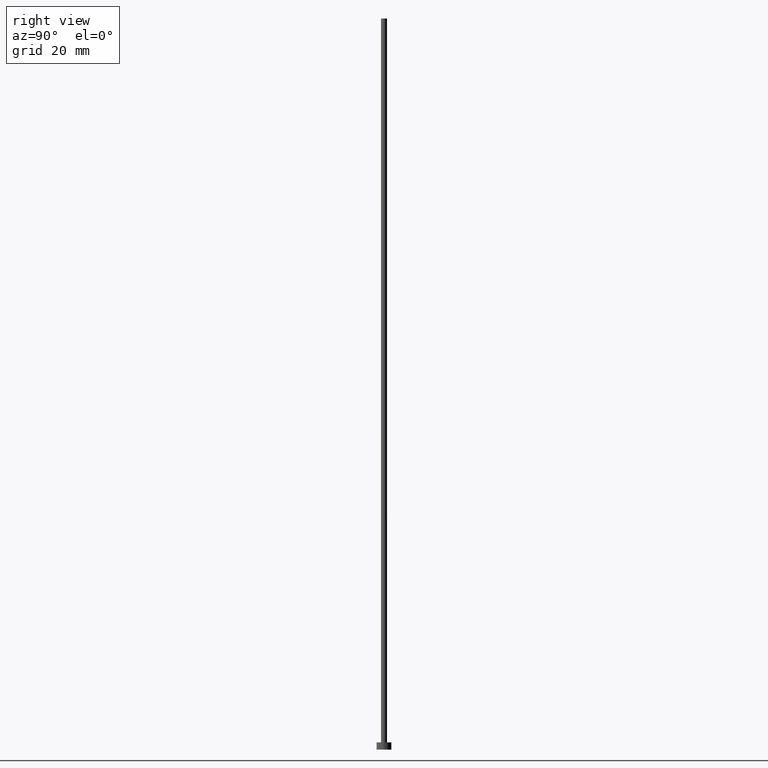
[diagram: clean part render]
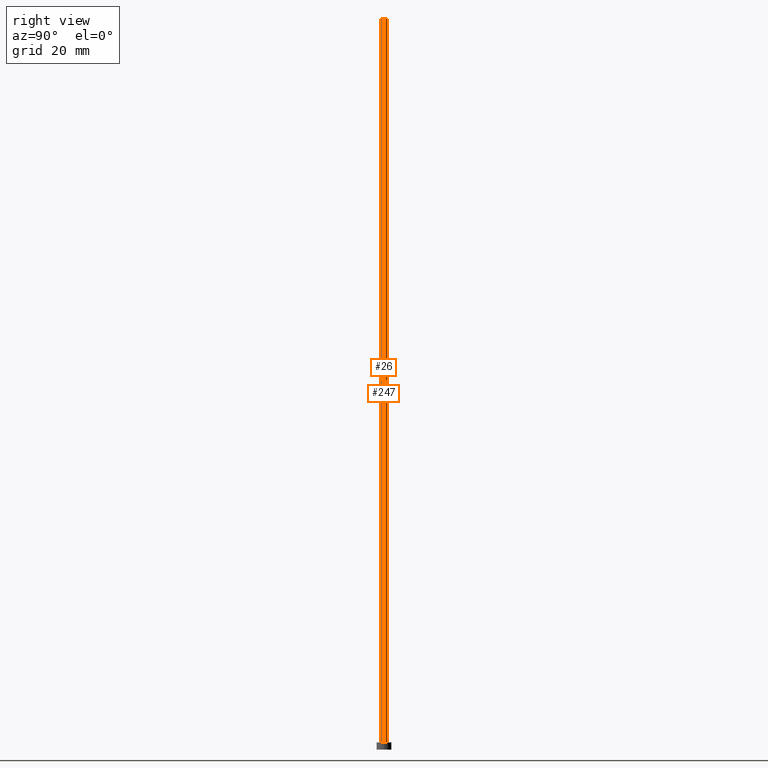
[diagram: same view with one multi-face feature highlighted, each face labeled with its STEP entity id]
A machine part, right view. The highlighted faces form ONE feature: a constant-radius fillet chain: 2 tangent blend faces with common blend radius 0.5 mm. The faces share edges in the B-rep.
Their STEP definitions:
[1] entity #247 (Cylinder):
#1 = ORIENTED_EDGE ( 'NONE', *, *, #76, .F. ) ;
#3 = ORIENTED_EDGE ( 'NONE', *, *, #92, .F. ) ;
#5 = VERTEX_POINT ( 'NONE', #19 ) ;
#19 = CARTESIAN_POINT ( 'NONE',  ( -0.5000000000000000000, 0.000000000000000000, 122.0000000000000000 ) ) ;
#30 = LINE ( 'NONE', #185, #216 ) ;
#31 = DIRECTION ( 'NONE',  ( -0.000000000000000000, -0.000000000000000000, -1.000000000000000000 ) ) ;
#44 = AXIS2_PLACEMENT_3D ( 'NONE', #90, #203, #54 ) ;
#52 = EDGE_CURVE ( 'NONE', #254, #79, #126, .T. ) ;
#54 = DIRECTION ( 'NONE',  ( -1.000000000000000000, 0.000000000000000000, 0.000000000000000000 ) ) ;
#61 = EDGE_CURVE ( 'NONE', #157, #254, #30, .T. ) ;
#68 = CIRCLE ( 'NONE', #176, 0.5000000000000000000 ) ;
#75 = CYLINDRICAL_SURFACE ( 'NONE', #44, 0.5000000000000000000 ) ;
#76 = EDGE_CURVE ( 'NONE', #157, #5, #68, .T. ) ;
#79 = VERTEX_POINT ( 'NONE', #143 ) ;
#83 = DIRECTION ( 'NONE',  ( 0.000000000000000000, 0.000000000000000000, 1.000000000000000000 ) ) ;
#90 = CARTESIAN_POINT ( 'NONE',  ( 0.000000000000000000, 0.000000000000000000, 122.0000000000000000 ) ) ;
#92 = EDGE_CURVE ( 'NONE', #5, #79, #225, .T. ) ;
#112 = CARTESIAN_POINT ( 'NONE',  ( 0.5000000000000000000, 6.123233995736766036E-17, 1.199999999999999956 ) ) ;
#119 = EDGE_LOOP ( 'NONE', ( #1, #158, #120, #3 ) ) ;
#120 = ORIENTED_EDGE ( 'NONE', *, *, #52, .T. ) ;
#123 = CARTESIAN_POINT ( 'NONE',  ( 0.5000000000000000000, 6.123233995736766036E-17, 122.0000000000000000 ) ) ;
#126 = CIRCLE ( 'NONE', #179, 0.5000000000000000000 ) ;
#143 = CARTESIAN_POINT ( 'NONE',  ( -0.5000000000000000000, 0.000000000000000000, 1.199999999999999956 ) ) ;
#151 = FACE_OUTER_BOUND ( 'NONE', #119, .T. ) ;
#157 = VERTEX_POINT ( 'NONE', #123 ) ;
#158 = ORIENTED_EDGE ( 'NONE', *, *, #61, .T. ) ;
#163 = DIRECTION ( 'NONE',  ( 1.000000000000000000, 0.000000000000000000, 0.000000000000000000 ) ) ;
#176 = AXIS2_PLACEMENT_3D ( 'NONE', #199, #83, #163 ) ;
#179 = AXIS2_PLACEMENT_3D ( 'NONE', #195, #222, #197 ) ;
#185 = CARTESIAN_POINT ( 'NONE',  ( 0.5000000000000000000, 6.123233995736766036E-17, 122.0000000000000000 ) ) ;
#186 = CARTESIAN_POINT ( 'NONE',  ( -0.5000000000000000000, 0.000000000000000000, 122.0000000000000000 ) ) ;
#195 = CARTESIAN_POINT ( 'NONE',  ( 0.000000000000000000, 0.000000000000000000, 1.199999999999999956 ) ) ;
#197 = DIRECTION ( 'NONE',  ( 1.000000000000000000, 0.000000000000000000, 0.000000000000000000 ) ) ;
#199 = CARTESIAN_POINT ( 'NONE',  ( 0.000000000000000000, 0.000000000000000000, 122.0000000000000000 ) ) ;
#203 = DIRECTION ( 'NONE',  ( -0.000000000000000000, -0.000000000000000000, -1.000000000000000000 ) ) ;
#205 = VECTOR ( 'NONE', #220, 1000.000000000000000 ) ;
#216 = VECTOR ( 'NONE', #31, 1000.000000000000000 ) ;
#220 = DIRECTION ( 'NONE',  ( -0.000000000000000000, -0.000000000000000000, -1.000000000000000000 ) ) ;
#222 = DIRECTION ( 'NONE',  ( 0.000000000000000000, 0.000000000000000000, 1.000000000000000000 ) ) ;
#225 = LINE ( 'NONE', #186, #205 ) ;
#247 = ADVANCED_FACE ( 'NONE', ( #151 ), #75, .T. ) ;
#254 = VERTEX_POINT ( 'NONE', #112 ) ;
[2] entity #26 (Cylinder):
#5 = VERTEX_POINT ( 'NONE', #19 ) ;
#7 = DIRECTION ( 'NONE',  ( 1.000000000000000000, 0.000000000000000000, 0.000000000000000000 ) ) ;
#9 = CARTESIAN_POINT ( 'NONE',  ( 0.000000000000000000, 0.000000000000000000, 122.0000000000000000 ) ) ;
#19 = CARTESIAN_POINT ( 'NONE',  ( -0.5000000000000000000, 0.000000000000000000, 122.0000000000000000 ) ) ;
#22 = ORIENTED_EDGE ( 'NONE', *, *, #92, .T. ) ;
#23 = AXIS2_PLACEMENT_3D ( 'NONE', #9, #88, #25 ) ;
#25 = DIRECTION ( 'NONE',  ( 1.000000000000000000, 0.000000000000000000, 0.000000000000000000 ) ) ;
#26 = ADVANCED_FACE ( 'NONE', ( #85 ), #217, .T. ) ;
#27 = CIRCLE ( 'NONE', #109, 0.5000000000000000000 ) ;
#28 = DIRECTION ( 'NONE',  ( -0.000000000000000000, -0.000000000000000000, -1.000000000000000000 ) ) ;
#30 = LINE ( 'NONE', #185, #216 ) ;
#31 = DIRECTION ( 'NONE',  ( -0.000000000000000000, -0.000000000000000000, -1.000000000000000000 ) ) ;
#34 = EDGE_CURVE ( 'NONE', #79, #254, #27, .T. ) ;
#61 = EDGE_CURVE ( 'NONE', #157, #254, #30, .T. ) ;
#62 = ORIENTED_EDGE ( 'NONE', *, *, #34, .T. ) ;
#78 = ORIENTED_EDGE ( 'NONE', *, *, #101, .F. ) ;
#79 = VERTEX_POINT ( 'NONE', #143 ) ;
#85 = FACE_OUTER_BOUND ( 'NONE', #237, .T. ) ;
#88 = DIRECTION ( 'NONE',  ( 0.000000000000000000, 0.000000000000000000, 1.000000000000000000 ) ) ;
#92 = EDGE_CURVE ( 'NONE', #5, #79, #225, .T. ) ;
#96 = CIRCLE ( 'NONE', #23, 0.5000000000000000000 ) ;
#101 = EDGE_CURVE ( 'NONE', #5, #157, #96, .T. ) ;
#107 = CARTESIAN_POINT ( 'NONE',  ( 0.000000000000000000, 0.000000000000000000, 122.0000000000000000 ) ) ;
#109 = AXIS2_PLACEMENT_3D ( 'NONE', #145, #128, #7 ) ;
#112 = CARTESIAN_POINT ( 'NONE',  ( 0.5000000000000000000, 6.123233995736766036E-17, 1.199999999999999956 ) ) ;
#123 = CARTESIAN_POINT ( 'NONE',  ( 0.5000000000000000000, 6.123233995736766036E-17, 122.0000000000000000 ) ) ;
#128 = DIRECTION ( 'NONE',  ( 0.000000000000000000, 0.000000000000000000, 1.000000000000000000 ) ) ;
#143 = CARTESIAN_POINT ( 'NONE',  ( -0.5000000000000000000, 0.000000000000000000, 1.199999999999999956 ) ) ;
#145 = CARTESIAN_POINT ( 'NONE',  ( 0.000000000000000000, 0.000000000000000000, 1.199999999999999956 ) ) ;
#157 = VERTEX_POINT ( 'NONE', #123 ) ;
#165 = DIRECTION ( 'NONE',  ( -1.000000000000000000, 0.000000000000000000, 0.000000000000000000 ) ) ;
#185 = CARTESIAN_POINT ( 'NONE',  ( 0.5000000000000000000, 6.123233995736766036E-17, 122.0000000000000000 ) ) ;
#186 = CARTESIAN_POINT ( 'NONE',  ( -0.5000000000000000000, 0.000000000000000000, 122.0000000000000000 ) ) ;
#205 = VECTOR ( 'NONE', #220, 1000.000000000000000 ) ;
#216 = VECTOR ( 'NONE', #31, 1000.000000000000000 ) ;
#217 = CYLINDRICAL_SURFACE ( 'NONE', #235, 0.5000000000000000000 ) ;
#220 = DIRECTION ( 'NONE',  ( -0.000000000000000000, -0.000000000000000000, -1.000000000000000000 ) ) ;
#225 = LINE ( 'NONE', #186, #205 ) ;
#235 = AXIS2_PLACEMENT_3D ( 'NONE', #107, #28, #165 ) ;
#236 = ORIENTED_EDGE ( 'NONE', *, *, #61, .F. ) ;
#237 = EDGE_LOOP ( 'NONE', ( #236, #78, #22, #62 ) ) ;
#254 = VERTEX_POINT ( 'NONE', #112 ) ;